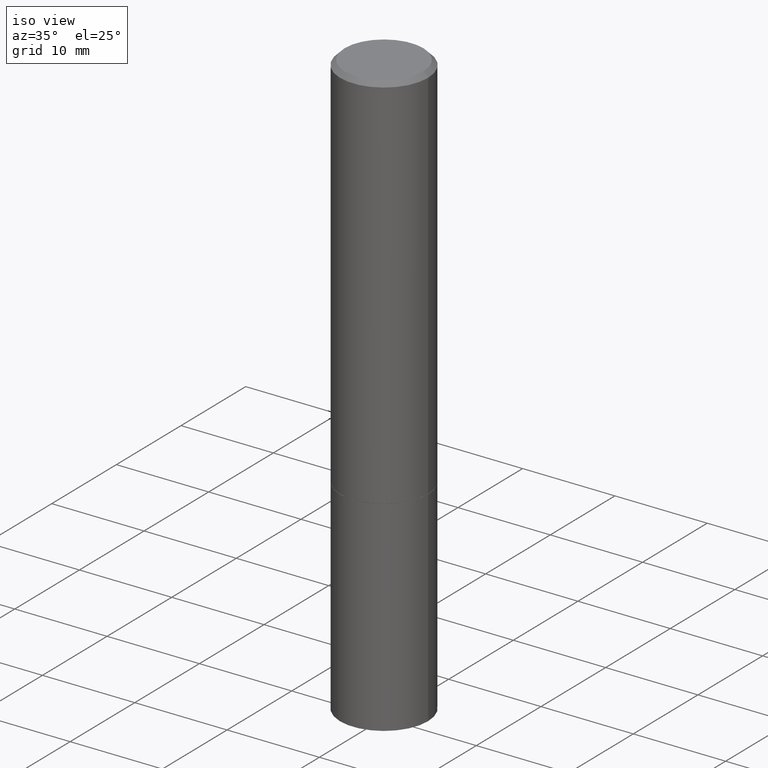
[diagram: clean part render]
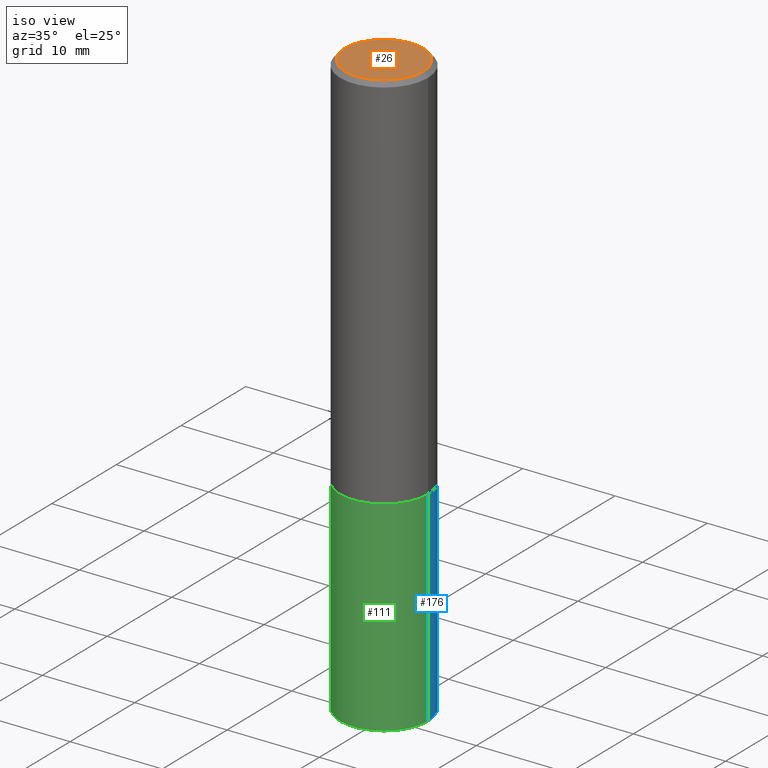
[diagram: same view with three faces highlighted in distinct colors, each labeled with its STEP entity id]
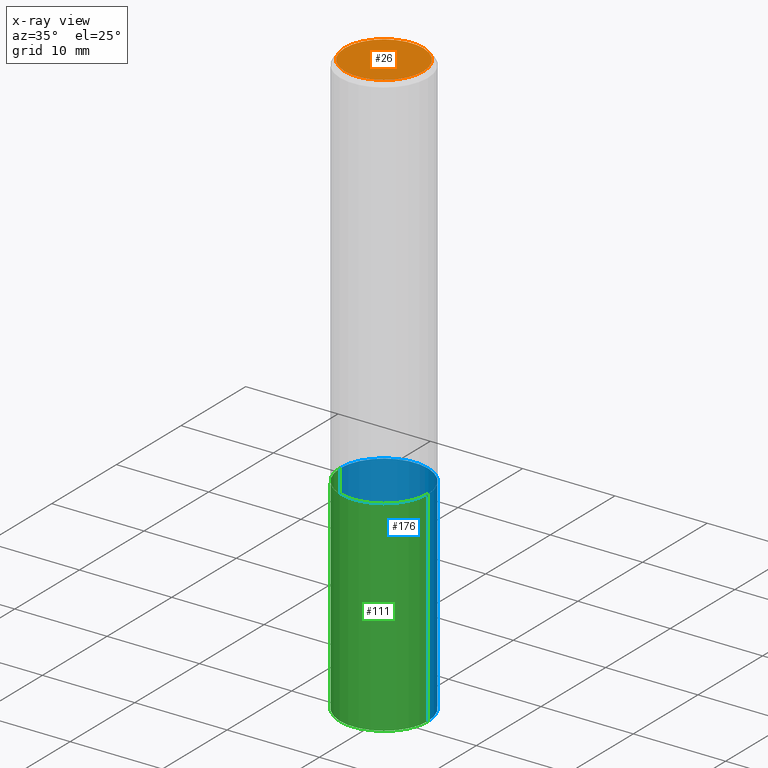
[diagram: x-ray of the same camera — body ghosted, the three highlighted faces saturated]
A machine part, iso view with three faces highlighted in distinct colors.
The next image is the same camera in x-ray (body ghosted, the three faces saturated) — at least one of them is partly hidden behind the body in this view.
Their STEP definitions:

[orange] entity #26 — the highlighted planar face has unit normal (0, -0, -1).
#26 = ADVANCED_FACE ( 'NONE', ( #301 ), #76, .F. ) ;
#58 = VERTEX_POINT ( 'NONE', #134 ) ;
#62 = CIRCLE ( 'NONE', #355, 0.1674999999999997879 ) ;
#71 = EDGE_CURVE ( 'NONE', #331, #58, #62, .T. ) ;
#74 = CARTESIAN_POINT ( 'NONE',  ( 1.169646248512448215E-15, 0.1674999999999997879, -5.848231242562260795E-16 ) ) ;
#76 = PLANE ( 'NONE',  #365 ) ;
#112 = ORIENTED_EDGE ( 'NONE', *, *, #126, .T. ) ;
#119 = EDGE_LOOP ( 'NONE', ( #148, #112 ) ) ;
#126 = EDGE_CURVE ( 'NONE', #58, #331, #212, .T. ) ;
#134 = CARTESIAN_POINT ( 'NONE',  ( 0.1674999999999997879, -1.252653207992876908E-15, 8.469775550109228175E-30 ) ) ;
#148 = ORIENTED_EDGE ( 'NONE', *, *, #71, .T. ) ;
#183 = DIRECTION ( 'NONE',  ( -1.000000000000000000, 6.982962677686265922E-15, -4.876176775795935793E-29 ) ) ;
#209 = DIRECTION ( 'NONE',  ( 1.000000000000000000, -6.982962677686266711E-15, 4.876176775795935793E-29 ) ) ;
#212 = CIRCLE ( 'NONE', #315, 0.1674999999999997879 ) ;
#242 = CARTESIAN_POINT ( 'NONE',  ( 0.000000000000000000, 0.000000000000000000, 0.000000000000000000 ) ) ;
#258 = DIRECTION ( 'NONE',  ( 1.000000000000000000, -6.982962677686266711E-15, 4.876176775795935793E-29 ) ) ;
#280 = CARTESIAN_POINT ( 'NONE',  ( 0.000000000000000000, 0.000000000000000000, 0.000000000000000000 ) ) ;
#301 = FACE_OUTER_BOUND ( 'NONE', #119, .T. ) ;
#303 = CARTESIAN_POINT ( 'NONE',  ( -0.1674999999999997879, 1.204561061900879272E-15, -8.301862719484101980E-30 ) ) ;
#315 = AXIS2_PLACEMENT_3D ( 'NONE', #280, #342, #258 ) ;
#331 = VERTEX_POINT ( 'NONE', #303 ) ;
#332 = DIRECTION ( 'NONE',  ( 2.438088387897960049E-29, -3.491481338843145188E-15, -1.000000000000000000 ) ) ;
#342 = DIRECTION ( 'NONE',  ( -2.445468806185136597E-29, 3.491481338843145583E-15, 1.000000000000000000 ) ) ;
#355 = AXIS2_PLACEMENT_3D ( 'NONE', #242, #357, #209 ) ;
#357 = DIRECTION ( 'NONE',  ( -2.445468806185136597E-29, 3.491481338843145583E-15, 1.000000000000000000 ) ) ;
#365 = AXIS2_PLACEMENT_3D ( 'NONE', #74, #332, #183 ) ;

[blue] entity #176 — the highlighted cylindrical surface (partial cylindrical patch) has radius 4.7625 mm, axis along (-0, 0, 1).
#4 = ORIENTED_EDGE ( 'NONE', *, *, #20, .T. ) ;
#16 = ORIENTED_EDGE ( 'NONE', *, *, #82, .F. ) ;
#20 = EDGE_CURVE ( 'NONE', #196, #281, #22, .T. ) ;
#22 = CIRCLE ( 'NONE', #206, 0.1875000000000000278 ) ;
#25 = DIRECTION ( 'NONE',  ( 1.000000000000000000, -6.982962677686266711E-15, 0.000000000000000000 ) ) ;
#55 = CIRCLE ( 'NONE', #304, 0.1875000000000000278 ) ;
#57 = LINE ( 'NONE', #250, #264 ) ;
#60 = CYLINDRICAL_SURFACE ( 'NONE', #309, 0.1875000000000000278 ) ;
#79 = DIRECTION ( 'NONE',  ( -2.445468806185136597E-29, 3.491481338843145583E-15, 1.000000000000000000 ) ) ;
#82 = EDGE_CURVE ( 'NONE', #202, #268, #55, .T. ) ;
#86 = LINE ( 'NONE', #156, #348 ) ;
#88 = DIRECTION ( 'NONE',  ( -2.445468806185136597E-29, 3.491481338843145583E-15, 1.000000000000000000 ) ) ;
#95 = CARTESIAN_POINT ( 'NONE',  ( -0.1875000000000000278, -5.868912631813800729E-15, -1.625000000000000222 ) ) ;
#121 = EDGE_CURVE ( 'NONE', #281, #268, #86, .T. ) ;
#138 = CARTESIAN_POINT ( 'NONE',  ( 0.1875000000000000278, -6.982962677686288010E-15, -1.625000000000000222 ) ) ;
#143 = ORIENTED_EDGE ( 'NONE', *, *, #182, .F. ) ;
#153 = CARTESIAN_POINT ( 'NONE',  ( 3.973886810050848091E-29, -5.673657175620113002E-15, -1.625000000000000222 ) ) ;
#156 = CARTESIAN_POINT ( 'NONE',  ( -0.1875000000000000278, 1.332267629550188046E-15, -9.223003294227947991E-30 ) ) ;
#159 = DIRECTION ( 'NONE',  ( -2.445468806185136877E-29, 3.491481338843145188E-15, 1.000000000000000000 ) ) ;
#176 = ADVANCED_FACE ( 'NONE', ( #185 ), #60, .T. ) ;
#182 = EDGE_CURVE ( 'NONE', #196, #202, #57, .T. ) ;
#185 = FACE_OUTER_BOUND ( 'NONE', #261, .T. ) ;
#196 = VERTEX_POINT ( 'NONE', #308 ) ;
#202 = VERTEX_POINT ( 'NONE', #138 ) ;
#204 = CARTESIAN_POINT ( 'NONE',  ( 6.113672015462842613E-29, -8.728703347107864943E-15, -2.500000000000000000 ) ) ;
#206 = AXIS2_PLACEMENT_3D ( 'NONE', #204, #79, #324 ) ;
#215 = CARTESIAN_POINT ( 'NONE',  ( 0.000000000000000000, 0.000000000000000000, 0.000000000000000000 ) ) ;
#225 = CARTESIAN_POINT ( 'NONE',  ( -0.1875000000000000278, -5.868912631813800729E-15, -2.500000000000000000 ) ) ;
#250 = CARTESIAN_POINT ( 'NONE',  ( 0.1875000000000000278, -1.309305502066175008E-15, 9.142831454617381013E-30 ) ) ;
#261 = EDGE_LOOP ( 'NONE', ( #4, #343, #16, #143 ) ) ;
#264 = VECTOR ( 'NONE', #159, 39.37007874015748143 ) ;
#268 = VERTEX_POINT ( 'NONE', #95 ) ;
#278 = DIRECTION ( 'NONE',  ( -2.445468806185136597E-29, 3.491481338843145583E-15, 1.000000000000000000 ) ) ;
#281 = VERTEX_POINT ( 'NONE', #225 ) ;
#288 = DIRECTION ( 'NONE',  ( -2.445468806185136877E-29, 3.491481338843145188E-15, 1.000000000000000000 ) ) ;
#304 = AXIS2_PLACEMENT_3D ( 'NONE', #153, #278, #25 ) ;
#308 = CARTESIAN_POINT ( 'NONE',  ( 0.1875000000000000278, -1.003800884917403995E-14, -2.500000000000000000 ) ) ;
#309 = AXIS2_PLACEMENT_3D ( 'NONE', #215, #88, #334 ) ;
#324 = DIRECTION ( 'NONE',  ( 1.000000000000000000, -6.982962677686266711E-15, 0.000000000000000000 ) ) ;
#334 = DIRECTION ( 'NONE',  ( 1.000000000000000000, -6.982962677686265922E-15, 4.876176775795935793E-29 ) ) ;
#343 = ORIENTED_EDGE ( 'NONE', *, *, #121, .T. ) ;
#348 = VECTOR ( 'NONE', #288, 39.37007874015748143 ) ;

[green] entity #111 — the highlighted cylindrical surface (partial cylindrical patch) has radius 4.7625 mm, axis along (-0, 0, 1).
#30 = FACE_OUTER_BOUND ( 'NONE', #115, .T. ) ;
#41 = ORIENTED_EDGE ( 'NONE', *, *, #121, .F. ) ;
#57 = LINE ( 'NONE', #250, #264 ) ;
#65 = AXIS2_PLACEMENT_3D ( 'NONE', #142, #219, #283 ) ;
#80 = CARTESIAN_POINT ( 'NONE',  ( 6.113672015462842613E-29, -8.728703347107864943E-15, -2.500000000000000000 ) ) ;
#86 = LINE ( 'NONE', #156, #348 ) ;
#95 = CARTESIAN_POINT ( 'NONE',  ( -0.1875000000000000278, -5.868912631813800729E-15, -1.625000000000000222 ) ) ;
#100 = CARTESIAN_POINT ( 'NONE',  ( 3.973886810050848091E-29, -5.673657175620113002E-15, -1.625000000000000222 ) ) ;
#111 = ADVANCED_FACE ( 'NONE', ( #30 ), #337, .T. ) ;
#114 = AXIS2_PLACEMENT_3D ( 'NONE', #100, #178, #172 ) ;
#115 = EDGE_LOOP ( 'NONE', ( #41, #302, #130, #165 ) ) ;
#121 = EDGE_CURVE ( 'NONE', #281, #268, #86, .T. ) ;
#130 = ORIENTED_EDGE ( 'NONE', *, *, #182, .T. ) ;
#138 = CARTESIAN_POINT ( 'NONE',  ( 0.1875000000000000278, -6.982962677686288010E-15, -1.625000000000000222 ) ) ;
#142 = CARTESIAN_POINT ( 'NONE',  ( 0.000000000000000000, 0.000000000000000000, 0.000000000000000000 ) ) ;
#156 = CARTESIAN_POINT ( 'NONE',  ( -0.1875000000000000278, 1.332267629550188046E-15, -9.223003294227947991E-30 ) ) ;
#159 = DIRECTION ( 'NONE',  ( -2.445468806185136877E-29, 3.491481338843145188E-15, 1.000000000000000000 ) ) ;
#165 = ORIENTED_EDGE ( 'NONE', *, *, #323, .F. ) ;
#172 = DIRECTION ( 'NONE',  ( 1.000000000000000000, -6.982962677686266711E-15, 0.000000000000000000 ) ) ;
#178 = DIRECTION ( 'NONE',  ( -2.445468806185136597E-29, 3.491481338843145583E-15, 1.000000000000000000 ) ) ;
#182 = EDGE_CURVE ( 'NONE', #196, #202, #57, .T. ) ;
#184 = DIRECTION ( 'NONE',  ( -2.445468806185136597E-29, 3.491481338843145583E-15, 1.000000000000000000 ) ) ;
#195 = EDGE_CURVE ( 'NONE', #281, #196, #289, .T. ) ;
#196 = VERTEX_POINT ( 'NONE', #308 ) ;
#202 = VERTEX_POINT ( 'NONE', #138 ) ;
#216 = DIRECTION ( 'NONE',  ( 1.000000000000000000, -6.982962677686266711E-15, 0.000000000000000000 ) ) ;
#219 = DIRECTION ( 'NONE',  ( -2.445468806185136597E-29, 3.491481338843145583E-15, 1.000000000000000000 ) ) ;
#225 = CARTESIAN_POINT ( 'NONE',  ( -0.1875000000000000278, -5.868912631813800729E-15, -2.500000000000000000 ) ) ;
#250 = CARTESIAN_POINT ( 'NONE',  ( 0.1875000000000000278, -1.309305502066175008E-15, 9.142831454617381013E-30 ) ) ;
#257 = CIRCLE ( 'NONE', #114, 0.1875000000000000278 ) ;
#264 = VECTOR ( 'NONE', #159, 39.37007874015748143 ) ;
#268 = VERTEX_POINT ( 'NONE', #95 ) ;
#277 = AXIS2_PLACEMENT_3D ( 'NONE', #80, #184, #216 ) ;
#281 = VERTEX_POINT ( 'NONE', #225 ) ;
#283 = DIRECTION ( 'NONE',  ( 1.000000000000000000, -6.982962677686265922E-15, 4.876176775795935793E-29 ) ) ;
#288 = DIRECTION ( 'NONE',  ( -2.445468806185136877E-29, 3.491481338843145188E-15, 1.000000000000000000 ) ) ;
#289 = CIRCLE ( 'NONE', #277, 0.1875000000000000278 ) ;
#302 = ORIENTED_EDGE ( 'NONE', *, *, #195, .T. ) ;
#308 = CARTESIAN_POINT ( 'NONE',  ( 0.1875000000000000278, -1.003800884917403995E-14, -2.500000000000000000 ) ) ;
#323 = EDGE_CURVE ( 'NONE', #268, #202, #257, .T. ) ;
#337 = CYLINDRICAL_SURFACE ( 'NONE', #65, 0.1875000000000000278 ) ;
#348 = VECTOR ( 'NONE', #288, 39.37007874015748143 ) ;